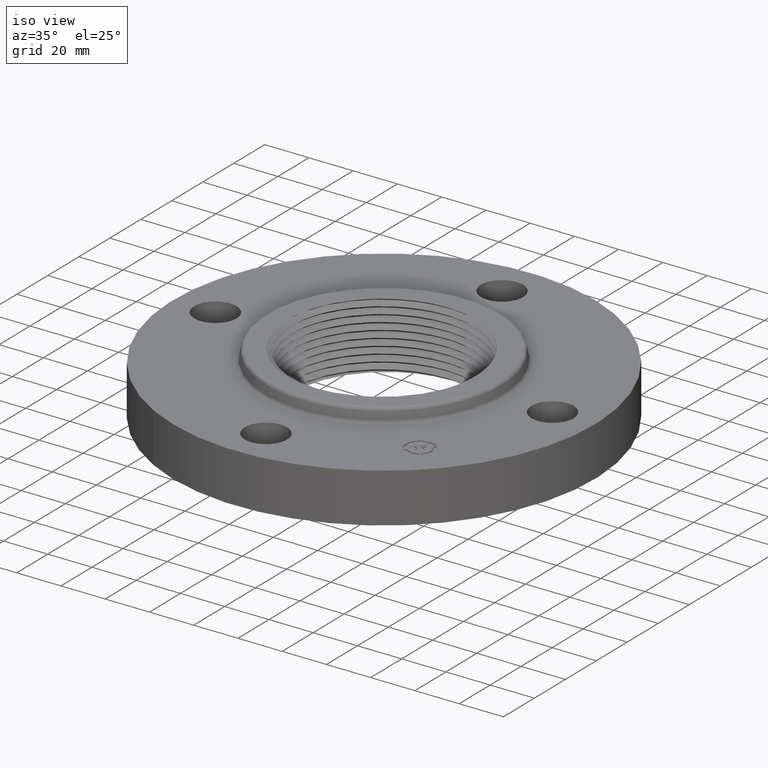
[diagram: clean part render]
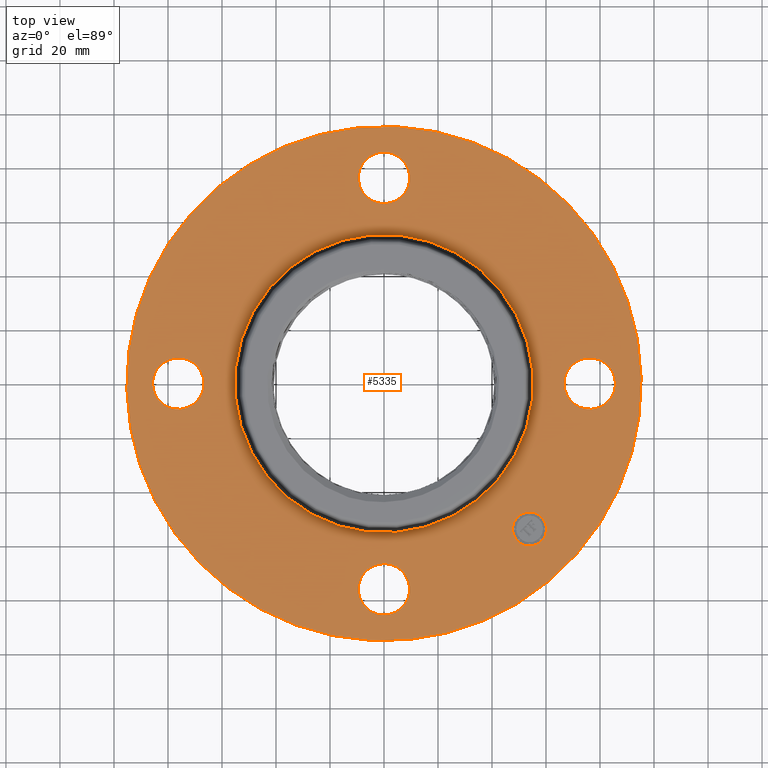
[diagram: tour spotlight — one face highlighted and labeled with its STEP entity id]
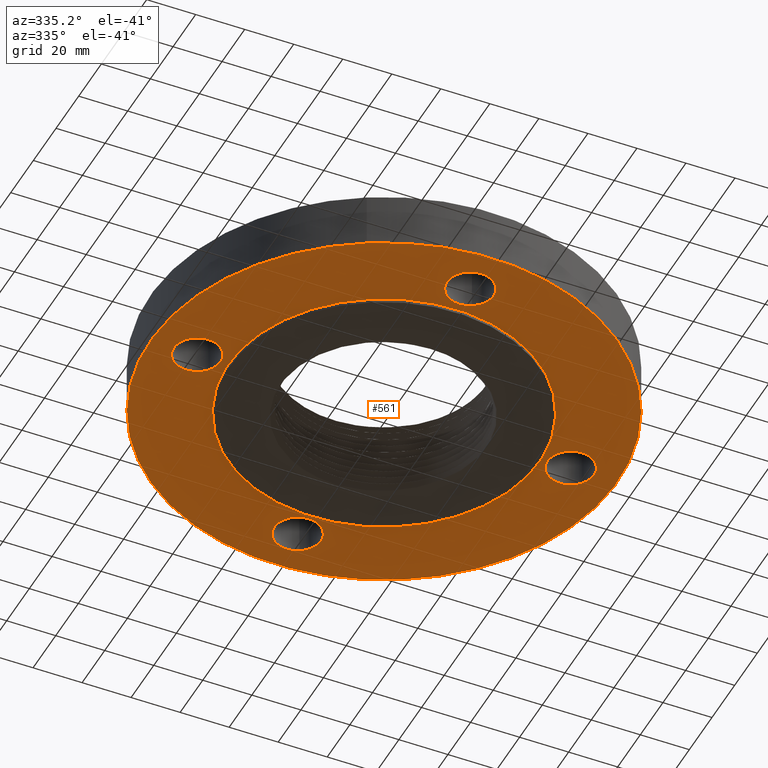
[diagram: tour spotlight — one face highlighted and labeled with its STEP entity id]
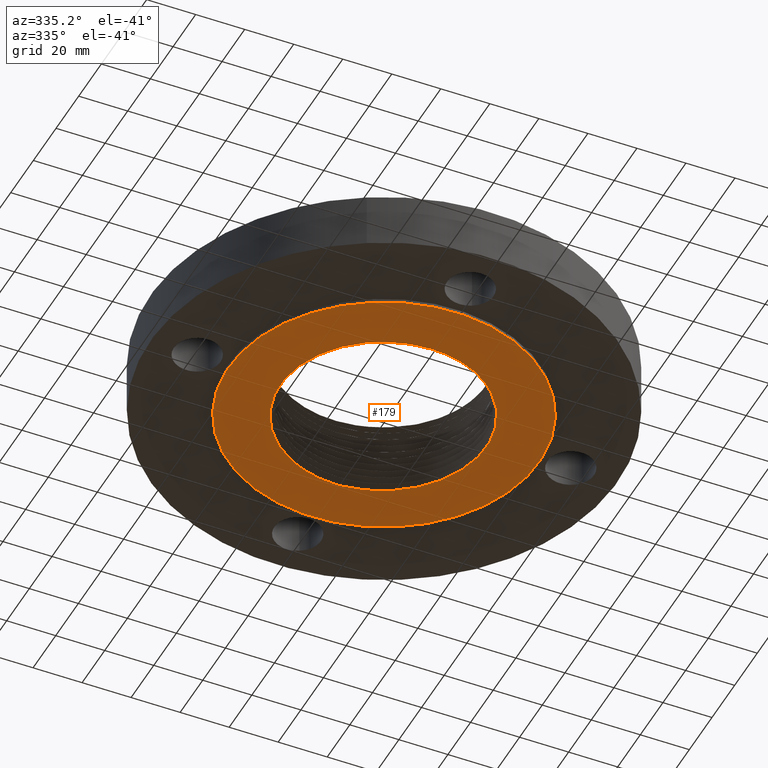
[diagram: tour spotlight — one face highlighted and labeled with its STEP entity id]
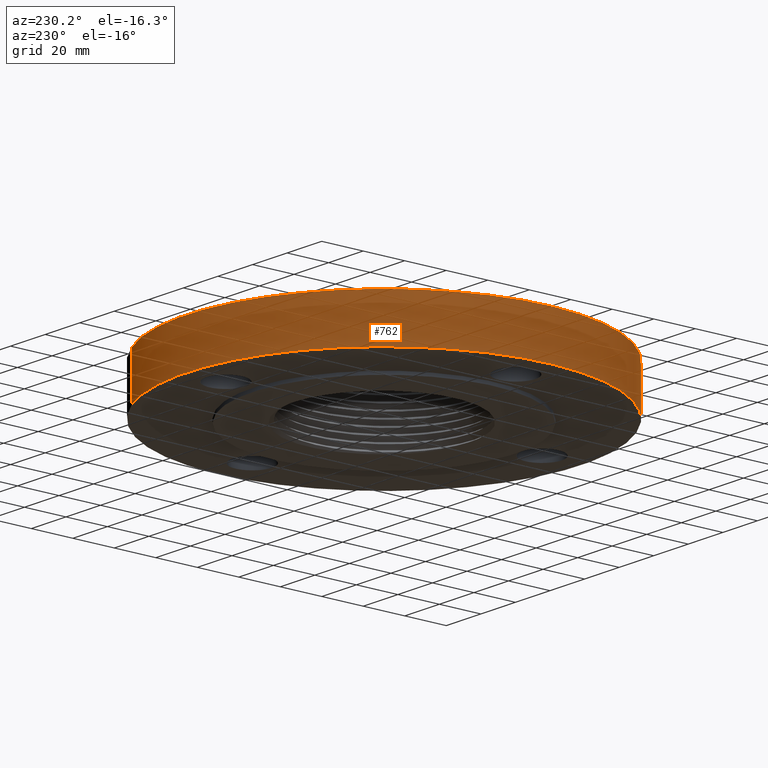
[diagram: tour spotlight — one face highlighted and labeled with its STEP entity id]
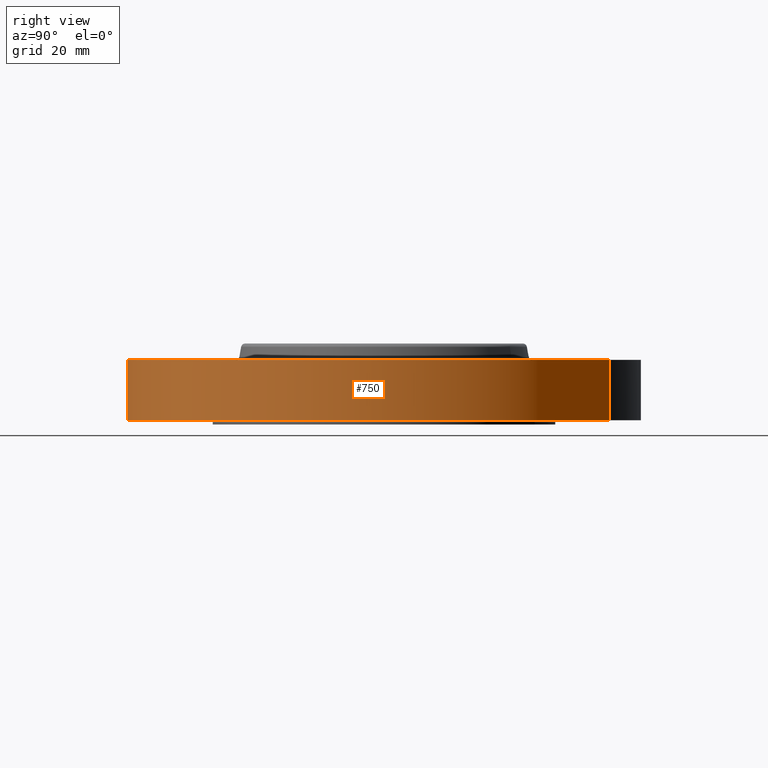
[diagram: tour spotlight — one face highlighted and labeled with its STEP entity id]
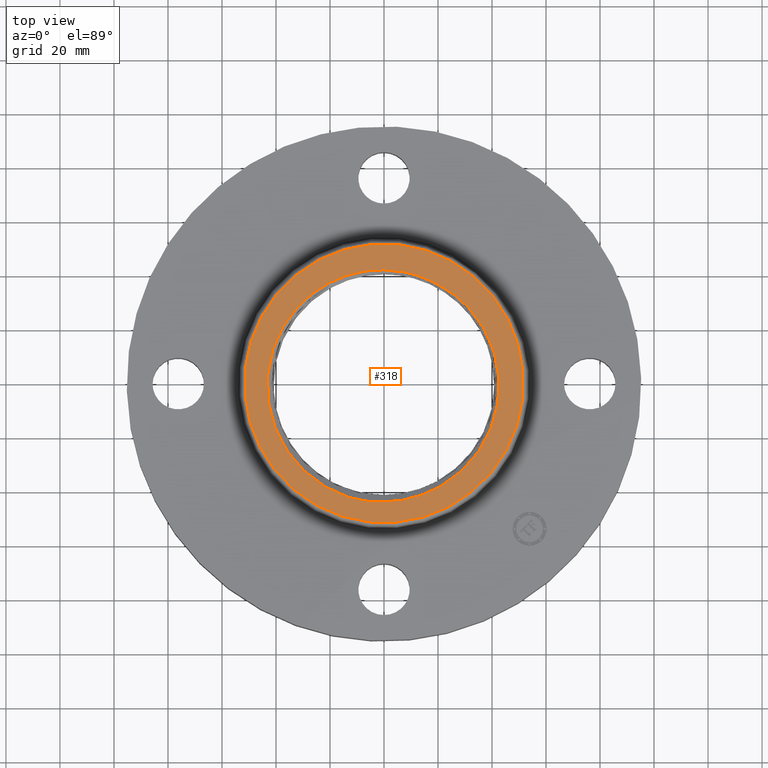
[diagram: tour spotlight — one face highlighted and labeled with its STEP entity id]
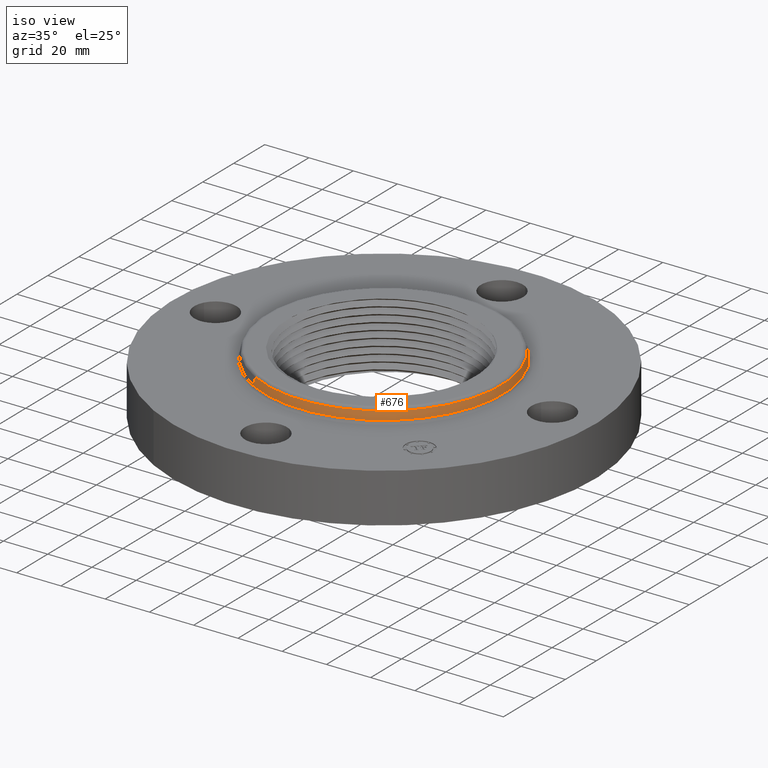
[diagram: tour spotlight — one face highlighted and labeled with its STEP entity id]
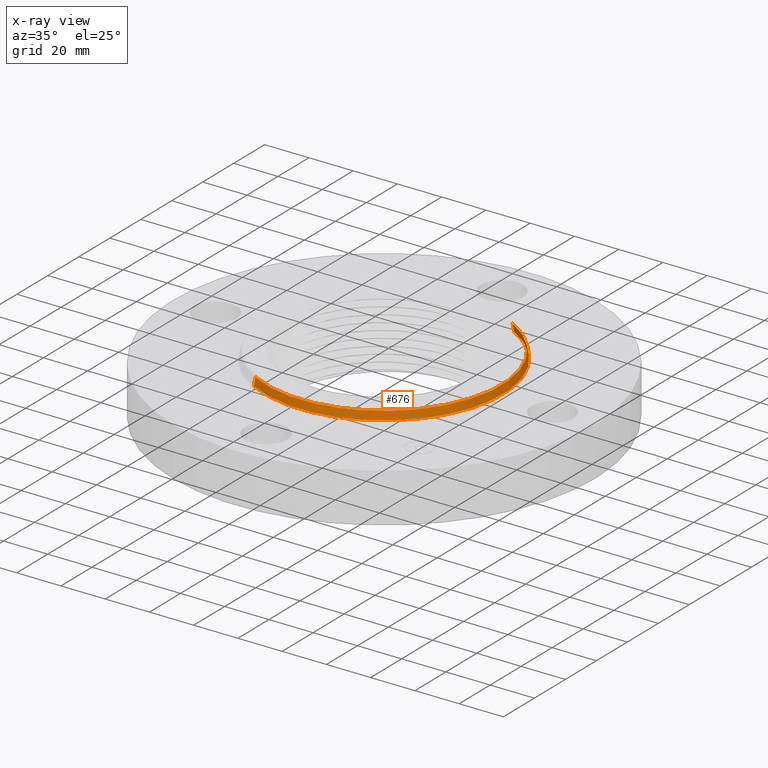
[diagram: x-ray of the same camera — body ghosted, this tour face saturated]
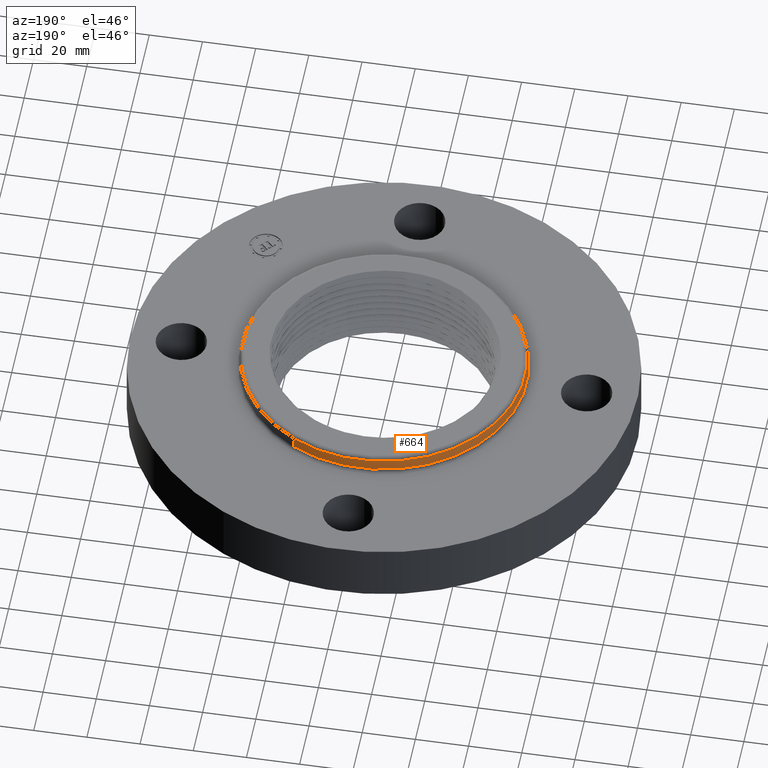
[diagram: tour spotlight — one face highlighted and labeled with its STEP entity id]
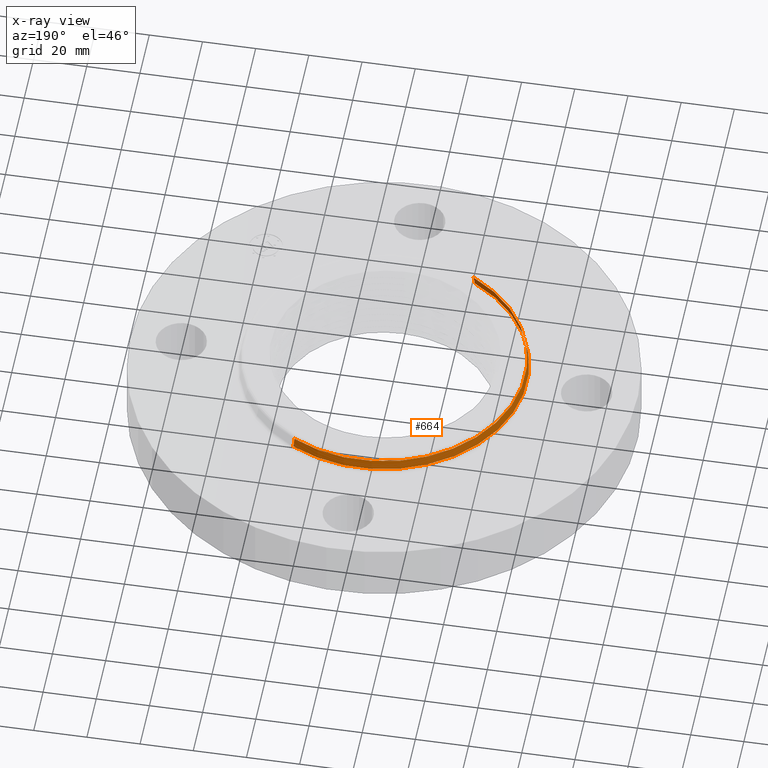
[diagram: x-ray of the same camera — body ghosted, this tour face saturated]
A machine part: a face-by-face anatomy tour. The part has 509 B-rep faces; the first image is the clean iso view, then the 8 largest visible faces are spotlighted one at a time (largest first), each with its STEP entity span.

Face 1 — top view, entity #5335. In plain terms, the highlighted planar face has unit normal (0, 0, -1).
Definition (entity closure, byte-faithful):
#349=AXIS2_PLACEMENT_3D('Circle Axis2P3D',#347,#348,$) ;
#366=AXIS2_PLACEMENT_3D('Circle Axis2P3D',#364,#365,$) ;
#406=AXIS2_PLACEMENT_3D('Circle Axis2P3D',#404,#405,$) ;
#423=AXIS2_PLACEMENT_3D('Circle Axis2P3D',#421,#422,$) ;
#463=AXIS2_PLACEMENT_3D('Circle Axis2P3D',#461,#462,$) ;
#480=AXIS2_PLACEMENT_3D('Circle Axis2P3D',#478,#479,$) ;
#684=AXIS2_PLACEMENT_3D('Circle Axis2P3D',#682,#683,$) ;
#710=AXIS2_PLACEMENT_3D('Circle Axis2P3D',#708,#709,$) ;
#734=AXIS2_PLACEMENT_3D('Circle Axis2P3D',#732,#733,$) ;
#753=AXIS2_PLACEMENT_3D('Circle Axis2P3D',#751,#752,$) ;
#784=AXIS2_PLACEMENT_3D('Circle Axis2P3D',#782,#783,$) ;
#796=AXIS2_PLACEMENT_3D('Circle Axis2P3D',#794,#795,$) ;
#5291=AXIS2_PLACEMENT_3D('Plane Axis2P3D',#5288,#5289,#5290) ;
#5319=AXIS2_PLACEMENT_3D('Circle Axis2P3D',#5317,#5318,$) ;
#5328=AXIS2_PLACEMENT_3D('Circle Axis2P3D',#5326,#5327,$) ;
#330=CARTESIAN_POINT('Vertex',(-0.179784576977,-3.32909346072,0.880000000004)) ;
#344=CARTESIAN_POINT('Vertex',(0.179784576977,-2.6709065393,0.880000000004)) ;
#347=CARTESIAN_POINT('Axis2P3D Location',(-3.7578544923E-016,-3.00000000001,0.880000000004)) ;
#364=CARTESIAN_POINT('Axis2P3D Location',(-3.7578544923E-016,-3.00000000001,0.880000000004)) ;
#387=CARTESIAN_POINT('Vertex',(-3.32909346072,0.179784576977,0.880000000004)) ;
#401=CARTESIAN_POINT('Vertex',(-2.6709065393,-0.179784576977,0.880000000004)) ;
#404=CARTESIAN_POINT('Axis2P3D Location',(-3.00000000001,-3.67394039746E-016,0.880000000004)) ;
#421=CARTESIAN_POINT('Axis2P3D Location',(-3.00000000001,-3.67394039746E-016,0.880000000004)) ;
#444=CARTESIAN_POINT('Vertex',(0.179784576977,3.32909346072,0.880000000004)) ;
#458=CARTESIAN_POINT('Vertex',(-0.179784576977,2.6709065393,0.880000000004)) ;
#461=CARTESIAN_POINT('Axis2P3D Location',(-5.51091059619E-016,3.00000000001,0.880000000004)) ;
#478=CARTESIAN_POINT('Axis2P3D Location',(-5.51091059619E-016,3.00000000001,0.880000000004)) ;
#682=CARTESIAN_POINT('Axis2P3D Location',(0.,0.,0.880000000004)) ;
#686=CARTESIAN_POINT('Vertex',(-1.0429164171,-1.90904569627,0.880000000004)) ;
#688=CARTESIAN_POINT('Vertex',(1.0429164171,1.90904569627,0.880000000004)) ;
#708=CARTESIAN_POINT('Axis2P3D Location',(0.,0.,0.880000000004)) ;
#729=CARTESIAN_POINT('Vertex',(1.79784576977,3.2909346071,0.880000000004)) ;
#732=CARTESIAN_POINT('Axis2P3D Location',(0.,0.,0.880000000004)) ;
#736=CARTESIAN_POINT('Vertex',(-1.79784576977,-3.2909346071,0.880000000004)) ;
#751=CARTESIAN_POINT('Axis2P3D Location',(0.,0.,0.880000000004)) ;
#772=CARTESIAN_POINT('Vertex',(3.32909346072,-0.179784576977,0.880000000004)) ;
#779=CARTESIAN_POINT('Vertex',(2.6709065393,0.179784576977,0.880000000004)) ;
#782=CARTESIAN_POINT('Axis2P3D Location',(3.00000000001,0.,0.880000000004)) ;
#794=CARTESIAN_POINT('Axis2P3D Location',(3.00000000001,0.,0.880000000004)) ;
#5288=CARTESIAN_POINT('Axis2P3D Location',(0.,3.75000000001,0.880000000004)) ;
#5317=CARTESIAN_POINT('Axis2P3D Location',(2.12132034357,-2.12132034357,0.880000000004)) ;
#5321=CARTESIAN_POINT('Vertex',(2.29632927191,-1.94631141522,0.880000000004)) ;
#5323=CARTESIAN_POINT('Vertex',(1.94631141522,-2.29632927191,0.880000000004)) ;
#5326=CARTESIAN_POINT('Axis2P3D Location',(2.12132034357,-2.12132034357,0.880000000004)) ;
#348=DIRECTION('Axis2P3D Direction',(0.,-0.,-0.0393700787402)) ;
#365=DIRECTION('Axis2P3D Direction',(0.,-0.,-0.0393700787402)) ;
#405=DIRECTION('Axis2P3D Direction',(-0.,0.,-0.0393700787402)) ;
#422=DIRECTION('Axis2P3D Direction',(-0.,0.,-0.0393700787402)) ;
#462=DIRECTION('Axis2P3D Direction',(0.,0.,-0.0393700787402)) ;
#479=DIRECTION('Axis2P3D Direction',(0.,0.,-0.0393700787402)) ;
#683=DIRECTION('Axis2P3D Direction',(0.,0.,-0.0393700787402)) ;
#709=DIRECTION('Axis2P3D Direction',(0.,0.,-0.0393700787402)) ;
#733=DIRECTION('Axis2P3D Direction',(0.,0.,-0.0393700787402)) ;
#752=DIRECTION('Axis2P3D Direction',(0.,0.,-0.0393700787402)) ;
#783=DIRECTION('Axis2P3D Direction',(0.,-0.,-0.0393700787402)) ;
#795=DIRECTION('Axis2P3D Direction',(0.,-0.,-0.0393700787402)) ;
#5289=DIRECTION('Axis2P3D Direction',(0.,0.,-0.0393700787402)) ;
#5290=DIRECTION('Axis2P3D XDirection',(0.0393700787402,0.,0.)) ;
#5318=DIRECTION('Axis2P3D Direction',(0.,0.,-0.0393700787402)) ;
#5327=DIRECTION('Axis2P3D Direction',(0.,0.,-0.0393700787402)) ;
#5294=ORIENTED_EDGE('',*,*,#738,.F.) ;
#5295=ORIENTED_EDGE('',*,*,#755,.F.) ;
#5298=ORIENTED_EDGE('',*,*,#798,.T.) ;
#5299=ORIENTED_EDGE('',*,*,#786,.T.) ;
#5302=ORIENTED_EDGE('',*,*,#690,.T.) ;
#5303=ORIENTED_EDGE('',*,*,#712,.T.) ;
#5306=ORIENTED_EDGE('',*,*,#351,.T.) ;
#5307=ORIENTED_EDGE('',*,*,#368,.T.) ;
#5310=ORIENTED_EDGE('',*,*,#408,.T.) ;
#5311=ORIENTED_EDGE('',*,*,#425,.T.) ;
#5314=ORIENTED_EDGE('',*,*,#465,.T.) ;
#5315=ORIENTED_EDGE('',*,*,#482,.T.) ;
#5332=ORIENTED_EDGE('',*,*,#5325,.T.) ;
#5333=ORIENTED_EDGE('',*,*,#5330,.T.) ;
#5300=FACE_BOUND('',#5297,.T.) ;
#5304=FACE_BOUND('',#5301,.T.) ;
#5308=FACE_BOUND('',#5305,.T.) ;
#5312=FACE_BOUND('',#5309,.T.) ;
#5316=FACE_BOUND('',#5313,.T.) ;
#5334=FACE_BOUND('',#5331,.T.) ;
#5335=ADVANCED_FACE('PartBody',(#5296,#5300,#5304,#5308,#5312,#5316,#5334),#5292,.F.) ;
#350=CIRCLE('generated circle',#349,0.375000000002) ;
#367=CIRCLE('generated circle',#366,0.375000000002) ;
#407=CIRCLE('generated circle',#406,0.375000000001) ;
#424=CIRCLE('generated circle',#423,0.375000000001) ;
#464=CIRCLE('generated circle',#463,0.375000000002) ;
#481=CIRCLE('generated circle',#480,0.375000000002) ;
#685=CIRCLE('generated circle',#684,2.17534597788) ;
#711=CIRCLE('generated circle',#710,2.17534597788) ;
#735=CIRCLE('generated circle',#734,3.75000000002) ;
#754=CIRCLE('generated circle',#753,3.75000000002) ;
#785=CIRCLE('generated circle',#784,0.375000000002) ;
#797=CIRCLE('generated circle',#796,0.375000000002) ;
#5320=CIRCLE('generated circle',#5319,0.247500000001) ;
#5329=CIRCLE('generated circle',#5328,0.247500000001) ;
#351=EDGE_CURVE('',#331,#345,#350,.T.) ;
#368=EDGE_CURVE('',#345,#331,#367,.T.) ;
#408=EDGE_CURVE('',#388,#402,#407,.T.) ;
#425=EDGE_CURVE('',#402,#388,#424,.T.) ;
#465=EDGE_CURVE('',#445,#459,#464,.T.) ;
#482=EDGE_CURVE('',#459,#445,#481,.T.) ;
#690=EDGE_CURVE('',#687,#689,#685,.T.) ;
#712=EDGE_CURVE('',#689,#687,#711,.T.) ;
#738=EDGE_CURVE('',#730,#737,#735,.T.) ;
#755=EDGE_CURVE('',#737,#730,#754,.T.) ;
#786=EDGE_CURVE('',#773,#780,#785,.T.) ;
#798=EDGE_CURVE('',#780,#773,#797,.T.) ;
#5325=EDGE_CURVE('',#5322,#5324,#5320,.T.) ;
#5330=EDGE_CURVE('',#5324,#5322,#5329,.T.) ;
#5293=EDGE_LOOP('',(#5294,#5295)) ;
#5297=EDGE_LOOP('',(#5298,#5299)) ;
#5301=EDGE_LOOP('',(#5302,#5303)) ;
#5305=EDGE_LOOP('',(#5306,#5307)) ;
#5309=EDGE_LOOP('',(#5310,#5311)) ;
#5313=EDGE_LOOP('',(#5314,#5315)) ;
#5331=EDGE_LOOP('',(#5332,#5333)) ;
#5296=FACE_OUTER_BOUND('',#5293,.T.) ;
#5292=PLANE('',#5291) ;
#331=VERTEX_POINT('',#330) ;
#345=VERTEX_POINT('',#344) ;
#388=VERTEX_POINT('',#387) ;
#402=VERTEX_POINT('',#401) ;
#445=VERTEX_POINT('',#444) ;
#459=VERTEX_POINT('',#458) ;
#687=VERTEX_POINT('',#686) ;
#689=VERTEX_POINT('',#688) ;
#730=VERTEX_POINT('',#729) ;
#737=VERTEX_POINT('',#736) ;
#773=VERTEX_POINT('',#772) ;
#780=VERTEX_POINT('',#779) ;
#5322=VERTEX_POINT('',#5321) ;
#5324=VERTEX_POINT('',#5323) ;

Face 2 — auxiliary view, entity #561. In plain terms, the highlighted planar face has unit normal (0, 0, -1).
Definition (entity closure, byte-faithful):
#335=AXIS2_PLACEMENT_3D('Circle Axis2P3D',#333,#334,$) ;
#361=AXIS2_PLACEMENT_3D('Circle Axis2P3D',#359,#360,$) ;
#392=AXIS2_PLACEMENT_3D('Circle Axis2P3D',#390,#391,$) ;
#418=AXIS2_PLACEMENT_3D('Circle Axis2P3D',#416,#417,$) ;
#449=AXIS2_PLACEMENT_3D('Circle Axis2P3D',#447,#448,$) ;
#475=AXIS2_PLACEMENT_3D('Circle Axis2P3D',#473,#474,$) ;
#493=AXIS2_PLACEMENT_3D('Plane Axis2P3D',#490,#491,#492) ;
#497=AXIS2_PLACEMENT_3D('Circle Axis2P3D',#495,#496,$) ;
#506=AXIS2_PLACEMENT_3D('Circle Axis2P3D',#504,#505,$) ;
#515=AXIS2_PLACEMENT_3D('Circle Axis2P3D',#513,#514,$) ;
#524=AXIS2_PLACEMENT_3D('Circle Axis2P3D',#522,#523,$) ;
#533=AXIS2_PLACEMENT_3D('Circle Axis2P3D',#531,#532,$) ;
#542=AXIS2_PLACEMENT_3D('Circle Axis2P3D',#540,#541,$) ;
#328=CARTESIAN_POINT('Vertex',(-0.179784576977,-3.32909346072,0.)) ;
#333=CARTESIAN_POINT('Axis2P3D Location',(-3.7578544923E-016,-3.00000000001,0.)) ;
#337=CARTESIAN_POINT('Vertex',(0.179784576977,-2.6709065393,0.)) ;
#359=CARTESIAN_POINT('Axis2P3D Location',(-3.7578544923E-016,-3.00000000001,0.)) ;
#385=CARTESIAN_POINT('Vertex',(-3.32909346072,0.179784576977,0.)) ;
#390=CARTESIAN_POINT('Axis2P3D Location',(-3.00000000001,-3.67394039746E-016,0.)) ;
#394=CARTESIAN_POINT('Vertex',(-2.6709065393,-0.179784576977,0.)) ;
#416=CARTESIAN_POINT('Axis2P3D Location',(-3.00000000001,-3.67394039746E-016,0.)) ;
#442=CARTESIAN_POINT('Vertex',(0.179784576977,3.32909346072,0.)) ;
#447=CARTESIAN_POINT('Axis2P3D Location',(-5.51091059619E-016,3.00000000001,0.)) ;
#451=CARTESIAN_POINT('Vertex',(-0.179784576977,2.6709065393,0.)) ;
#473=CARTESIAN_POINT('Axis2P3D Location',(-5.51091059619E-016,3.00000000001,0.)) ;
#490=CARTESIAN_POINT('Axis2P3D Location',(0.,2.50000000001,0.)) ;
#495=CARTESIAN_POINT('Axis2P3D Location',(0.,0.,0.)) ;
#499=CARTESIAN_POINT('Vertex',(-1.79784576977,-3.2909346071,4.19611851827E-016)) ;
#501=CARTESIAN_POINT('Vertex',(1.79784576977,3.2909346071,4.19611851827E-016)) ;
#504=CARTESIAN_POINT('Axis2P3D Location',(0.,0.,0.)) ;
#513=CARTESIAN_POINT('Axis2P3D Location',(3.00000000001,0.,0.)) ;
#517=CARTESIAN_POINT('Vertex',(3.32909346072,-0.179784576977,0.)) ;
#519=CARTESIAN_POINT('Vertex',(2.6709065393,0.179784576977,0.)) ;
#522=CARTESIAN_POINT('Axis2P3D Location',(3.00000000001,0.,0.)) ;
#531=CARTESIAN_POINT('Axis2P3D Location',(0.,0.,0.)) ;
#535=CARTESIAN_POINT('Vertex',(1.19856384652,2.19395640473,4.19611851827E-016)) ;
#537=CARTESIAN_POINT('Vertex',(-1.19856384652,-2.19395640473,4.19611851827E-016)) ;
#540=CARTESIAN_POINT('Axis2P3D Location',(0.,0.,0.)) ;
#334=DIRECTION('Axis2P3D Direction',(0.,-0.,-0.0393700787402)) ;
#360=DIRECTION('Axis2P3D Direction',(0.,-0.,-0.0393700787402)) ;
#391=DIRECTION('Axis2P3D Direction',(-0.,0.,-0.0393700787402)) ;
#417=DIRECTION('Axis2P3D Direction',(-0.,0.,-0.0393700787402)) ;
#448=DIRECTION('Axis2P3D Direction',(0.,0.,-0.0393700787402)) ;
#474=DIRECTION('Axis2P3D Direction',(0.,0.,-0.0393700787402)) ;
#491=DIRECTION('Axis2P3D Direction',(0.,0.,-0.0393700787402)) ;
#492=DIRECTION('Axis2P3D XDirection',(0.0393700787402,0.,0.)) ;
#496=DIRECTION('Axis2P3D Direction',(0.,0.,-0.0393700787402)) ;
#505=DIRECTION('Axis2P3D Direction',(0.,0.,-0.0393700787402)) ;
#514=DIRECTION('Axis2P3D Direction',(0.,0.,-0.0393700787402)) ;
#523=DIRECTION('Axis2P3D Direction',(0.,0.,-0.0393700787402)) ;
#532=DIRECTION('Axis2P3D Direction',(0.,0.,-0.0393700787402)) ;
#541=DIRECTION('Axis2P3D Direction',(0.,0.,-0.0393700787402)) ;
#510=ORIENTED_EDGE('',*,*,#503,.T.) ;
#511=ORIENTED_EDGE('',*,*,#508,.T.) ;
#528=ORIENTED_EDGE('',*,*,#521,.F.) ;
#529=ORIENTED_EDGE('',*,*,#526,.F.) ;
#546=ORIENTED_EDGE('',*,*,#539,.F.) ;
#547=ORIENTED_EDGE('',*,*,#544,.F.) ;
#550=ORIENTED_EDGE('',*,*,#363,.F.) ;
#551=ORIENTED_EDGE('',*,*,#339,.F.) ;
#554=ORIENTED_EDGE('',*,*,#420,.F.) ;
#555=ORIENTED_EDGE('',*,*,#396,.F.) ;
#558=ORIENTED_EDGE('',*,*,#477,.F.) ;
#559=ORIENTED_EDGE('',*,*,#453,.F.) ;
#530=FACE_BOUND('',#527,.T.) ;
#548=FACE_BOUND('',#545,.T.) ;
#552=FACE_BOUND('',#549,.T.) ;
#556=FACE_BOUND('',#553,.T.) ;
#560=FACE_BOUND('',#557,.T.) ;
#561=ADVANCED_FACE('PartBody',(#512,#530,#548,#552,#556,#560),#494,.T.) ;
#336=CIRCLE('generated circle',#335,0.375000000002) ;
#362=CIRCLE('generated circle',#361,0.375000000002) ;
#393=CIRCLE('generated circle',#392,0.375000000001) ;
#419=CIRCLE('generated circle',#418,0.375000000001) ;
#450=CIRCLE('generated circle',#449,0.375000000002) ;
#476=CIRCLE('generated circle',#475,0.375000000002) ;
#498=CIRCLE('generated circle',#497,3.75000000002) ;
#507=CIRCLE('generated circle',#506,3.75000000002) ;
#516=CIRCLE('generated circle',#515,0.375000000002) ;
#525=CIRCLE('generated circle',#524,0.375000000002) ;
#534=CIRCLE('generated circle',#533,2.50000000001) ;
#543=CIRCLE('generated circle',#542,2.50000000001) ;
#339=EDGE_CURVE('',#329,#338,#336,.T.) ;
#363=EDGE_CURVE('',#338,#329,#362,.T.) ;
#396=EDGE_CURVE('',#386,#395,#393,.T.) ;
#420=EDGE_CURVE('',#395,#386,#419,.T.) ;
#453=EDGE_CURVE('',#443,#452,#450,.T.) ;
#477=EDGE_CURVE('',#452,#443,#476,.T.) ;
#503=EDGE_CURVE('',#500,#502,#498,.T.) ;
#508=EDGE_CURVE('',#502,#500,#507,.T.) ;
#521=EDGE_CURVE('',#518,#520,#516,.T.) ;
#526=EDGE_CURVE('',#520,#518,#525,.T.) ;
#539=EDGE_CURVE('',#536,#538,#534,.T.) ;
#544=EDGE_CURVE('',#538,#536,#543,.T.) ;
#509=EDGE_LOOP('',(#510,#511)) ;
#527=EDGE_LOOP('',(#528,#529)) ;
#545=EDGE_LOOP('',(#546,#547)) ;
#549=EDGE_LOOP('',(#550,#551)) ;
#553=EDGE_LOOP('',(#554,#555)) ;
#557=EDGE_LOOP('',(#558,#559)) ;
#512=FACE_OUTER_BOUND('',#509,.T.) ;
#494=PLANE('',#493) ;
#329=VERTEX_POINT('',#328) ;
#338=VERTEX_POINT('',#337) ;
#386=VERTEX_POINT('',#385) ;
#395=VERTEX_POINT('',#394) ;
#443=VERTEX_POINT('',#442) ;
#452=VERTEX_POINT('',#451) ;
#500=VERTEX_POINT('',#499) ;
#502=VERTEX_POINT('',#501) ;
#518=VERTEX_POINT('',#517) ;
#520=VERTEX_POINT('',#519) ;
#536=VERTEX_POINT('',#535) ;
#538=VERTEX_POINT('',#537) ;

Face 3 — auxiliary view, entity #179. In plain terms, the highlighted planar face has unit normal (0, 0, -1).
Definition (entity closure, byte-faithful):
#38=AXIS2_PLACEMENT_3D('Plane Axis2P3D',#35,#36,#37) ;
#42=AXIS2_PLACEMENT_3D('Circle Axis2P3D',#40,#41,$) ;
#51=AXIS2_PLACEMENT_3D('Circle Axis2P3D',#49,#50,$) ;
#167=AXIS2_PLACEMENT_3D('Circle Axis2P3D',#165,#166,$) ;
#35=CARTESIAN_POINT('Axis2P3D Location',(0.,0.,-0.0625000000003)) ;
#40=CARTESIAN_POINT('Axis2P3D Location',(0.,0.,-0.0625000000003)) ;
#44=CARTESIAN_POINT('Vertex',(1.19856384652,2.19395640473,-0.0625000000002)) ;
#46=CARTESIAN_POINT('Vertex',(-1.19856384652,-2.19395640473,-0.0625000000002)) ;
#49=CARTESIAN_POINT('Axis2P3D Location',(0.,0.,-0.0625000000003)) ;
#59=CARTESIAN_POINT('Control Point',(-1.78110227888E-005,-1.61123401487,-0.0625000000003)) ;
#60=CARTESIAN_POINT('Control Point',(-0.0514740895987,-1.61026435839,-0.0625000000003)) ;
#61=CARTESIAN_POINT('Control Point',(-0.102872207559,-1.60724020761,-0.0625000000003)) ;
#62=CARTESIAN_POINT('Control Point',(-0.154101237261,-1.60216486216,-0.0625000000003)) ;
#63=CARTESIAN_POINT('Control Point',(-0.205051114167,-1.59505059164,-0.0625000000003)) ;
#64=CARTESIAN_POINT('Control Point',(-0.255613875317,-1.58591835635,-0.0625000000003)) ;
#65=CARTESIAN_POINT('Vertex',(-1.78110227857E-005,-1.61123401487,-0.0625000000003)) ;
#67=CARTESIAN_POINT('Vertex',(-0.255613881183,-1.58591834316,-0.0625000000003)) ;
#71=CARTESIAN_POINT('Control Point',(0.779727666988,-1.42731309088,-0.0625000000003)) ;
#72=CARTESIAN_POINT('Control Point',(0.664514979941,-1.48748976307,-0.0625000000003)) ;
#73=CARTESIAN_POINT('Control Point',(0.543396569985,-1.53609896629,-0.0625000000003)) ;
#74=CARTESIAN_POINT('Control Point',(0.417911460152,-1.57235286422,-0.0625000000003)) ;
#75=CARTESIAN_POINT('Control Point',(0.257918325908,-1.60159619245,-0.0625000000003)) ;
#76=CARTESIAN_POINT('Control Point',(0.0964774536794,-1.61064460401,-0.0625000000003)) ;
#77=CARTESIAN_POINT('Control Point',(0.0643074831708,-1.61164366805,-0.0625000000003)) ;
#78=CARTESIAN_POINT('Control Point',(0.0321334834418,-1.61183988283,-0.0625000000003)) ;
#79=CARTESIAN_POINT('Control Point',(-1.78110227858E-005,-1.61123401487,-0.0625000000003)) ;
#80=CARTESIAN_POINT('Vertex',(0.779727666988,-1.42731309088,-0.0625000000002)) ;
#84=CARTESIAN_POINT('Control Point',(0.0803885957613,1.7032381567,-0.0625000000003)) ;
#85=CARTESIAN_POINT('Control Point',(0.215600374124,1.69444358698,-0.0625000000003)) ;
#86=CARTESIAN_POINT('Control Point',(0.349811161119,1.67222714882,-0.0625000000003)) ;
#87=CARTESIAN_POINT('Control Point',(0.481211444396,1.63672790833,-0.0625000000003)) ;
#88=CARTESIAN_POINT('Control Point',(0.734996232187,1.54013031238,-0.0625000000003)) ;
#89=CARTESIAN_POINT('Control Point',(0.964201885189,1.39566433581,-0.0625000000003)) ;
#90=CARTESIAN_POINT('Control Point',(1.07112721349,1.3122409177,-0.0625000000003)) ;
#91=CARTESIAN_POINT('Control Point',(1.26671008398,1.12534408297,-0.0625000000003)) ;
#92=CARTESIAN_POINT('Control Point',(1.42114078721,0.903817690927,-0.0625000000003)) ;
#93=CARTESIAN_POINT('Control Point',(1.48693136268,0.785739012077,-0.0625000000003)) ;
#94=CARTESIAN_POINT('Control Point',(1.59380976479,0.538303399711,-0.0625000000003)) ;
#95=CARTESIAN_POINT('Control Point',(1.64928604649,0.274889194643,-0.0625000000003)) ;
#96=CARTESIAN_POINT('Control Point',(1.6636292106,0.140962999995,-0.0625000000003)) ;
#97=CARTESIAN_POINT('Control Point',(1.664676043,-0.0437822095799,-0.0625000000003)) ;
#98=CARTESIAN_POINT('Control Point',(1.64039500876,-0.22594661514,-0.0625000000003)) ;
#99=CARTESIAN_POINT('Control Point',(1.63190317246,-0.275317873615,-0.0625000000003)) ;
#100=CARTESIAN_POINT('Control Point',(1.59396788989,-0.454899241443,-0.0625000000003)) ;
#101=CARTESIAN_POINT('Control Point',(1.53141465201,-0.628058230536,-0.0625000000003)) ;
#102=CARTESIAN_POINT('Control Point',(1.4733608497,-0.748832554565,-0.0625000000003)) ;
#103=CARTESIAN_POINT('Control Point',(1.33377205932,-0.976748636683,-0.0625000000003)) ;
#104=CARTESIAN_POINT('Control Point',(1.15165507629,-1.17169169569,-0.0625000000003)) ;
#105=CARTESIAN_POINT('Control Point',(1.05107147082,-1.25948933282,-0.0625000000003)) ;
#106=CARTESIAN_POINT('Control Point',(0.933503050378,-1.34267183924,-0.0625000000003)) ;
#107=CARTESIAN_POINT('Control Point',(0.80831242576,-1.41207975131,-0.0625000000003)) ;
#108=CARTESIAN_POINT('Control Point',(0.798824790172,-1.41723741235,-0.0625000000003)) ;
#109=CARTESIAN_POINT('Control Point',(0.789296597434,-1.42231514833,-0.0625000000003)) ;
#110=CARTESIAN_POINT('Control Point',(0.779727666988,-1.42731309088,-0.0625000000003)) ;
#111=CARTESIAN_POINT('Vertex',(0.0803885957613,1.7032381567,-0.0625000000002)) ;
#115=CARTESIAN_POINT('Control Point',(0.0803885957613,1.7032381567,-0.0625000000003)) ;
#116=CARTESIAN_POINT('Control Point',(0.0643127808256,1.70368019184,-0.0625000000003)) ;
#117=CARTESIAN_POINT('Control Point',(0.0482334024243,1.70393266217,-0.0625000000003)) ;
#118=CARTESIAN_POINT('Control Point',(0.032149662913,1.70399549236,-0.0625000000003)) ;
#119=CARTESIAN_POINT('Control Point',(0.0160722817017,1.70386865086,-0.0625000000003)) ;
#120=CARTESIAN_POINT('Control Point',(4.80212238023E-007,1.70355223976,-0.0625000000003)) ;
#121=CARTESIAN_POINT('Vertex',(4.80212240156E-007,1.70355223976,-0.0625000000003)) ;
#125=CARTESIAN_POINT('Control Point',(4.80212240016E-007,1.70355223976,-0.0625000000003)) ;
#126=CARTESIAN_POINT('Control Point',(-0.136119436784,1.70087239975,-0.0625000000003)) ;
#127=CARTESIAN_POINT('Control Point',(-0.27183961586,1.68459426817,-0.0625000000003)) ;
#128=CARTESIAN_POINT('Control Point',(-0.4053493026,1.65476905766,-0.0625000000003)) ;
#129=CARTESIAN_POINT('Control Point',(-0.567002894362,1.60115020283,-0.0625000000003)) ;
#130=CARTESIAN_POINT('Control Point',(-0.719817826846,1.52825810399,-0.0625000000003)) ;
#131=CARTESIAN_POINT('Control Point',(-0.749849665231,1.51300255711,-0.0625000000003)) ;
#132=CARTESIAN_POINT('Control Point',(-0.779481377952,1.49700846105,-0.0625000000003)) ;
#133=CARTESIAN_POINT('Control Point',(-0.80868883071,1.48028995823,-0.0625000000003)) ;
#134=CARTESIAN_POINT('Vertex',(-0.80868883071,1.48028995823,-0.0625000000003)) ;
#138=CARTESIAN_POINT('Control Point',(-0.80868883071,1.48028995823,-0.0625000000003)) ;
#139=CARTESIAN_POINT('Control Point',(-0.925616596222,1.41335987712,-0.0625000000003)) ;
#140=CARTESIAN_POINT('Control Point',(-1.03574460279,1.33481970471,-0.0625000000003)) ;
#141=CARTESIAN_POINT('Control Point',(-1.13752106513,1.24557672051,-0.0625000000003)) ;
#142=CARTESIAN_POINT('Control Point',(-1.32164903309,1.04813043837,-0.0625000000003)) ;
#143=CARTESIAN_POINT('Control Point',(-1.4626319971,0.818527546855,-0.0625000000003)) ;
#144=CARTESIAN_POINT('Control Point',(-1.52126959556,0.697114123213,-0.0625000000003)) ;
#145=CARTESIAN_POINT('Control Point',(-1.58450605571,0.523379601755,-0.0625000000003)) ;
#146=CARTESIAN_POINT('Control Point',(-1.62302594419,0.343625152827,-0.0625000000003)) ;
#147=CARTESIAN_POINT('Control Point',(-1.63166969737,0.294249356774,-0.0625000000003)) ;
#148=CARTESIAN_POINT('Control Point',(-1.65649276029,0.112182108757,-0.0625000000003)) ;
#149=CARTESIAN_POINT('Control Point',(-1.65596326255,-0.0720677531709,-0.0625000000003)) ;
#150=CARTESIAN_POINT('Control Point',(-1.64201302533,-0.205406026359,-0.0625000000003)) ;
#151=CARTESIAN_POINT('Control Point',(-1.58741123476,-0.467206479079,-0.0625000000003)) ;
#152=CARTESIAN_POINT('Control Point',(-1.48173123157,-0.712099379943,-0.0625000000003)) ;
#153=CARTESIAN_POINT('Control Point',(-1.41665299547,-0.828676392053,-0.0625000000003)) ;
#154=CARTESIAN_POINT('Control Point',(-1.26391911169,-1.04679231741,-0.0625000000003)) ;
#155=CARTESIAN_POINT('Control Point',(-1.07085021271,-1.22933732554,-0.0625000000003)) ;
#156=CARTESIAN_POINT('Control Point',(-0.965402222808,-1.310378351,-0.0625000000003)) ;
#157=CARTESIAN_POINT('Control Point',(-0.789655949762,-1.41885112521,-0.0625000000003)) ;
#158=CARTESIAN_POINT('Control Point',(-0.599902949186,-1.49782384802,-0.0625000000003)) ;
#159=CARTESIAN_POINT('Control Point',(-0.530502381916,-1.52216617,-0.0625000000003)) ;
#160=CARTESIAN_POINT('Control Point',(-0.459894649246,-1.54249005354,-0.0625000000003)) ;
#161=CARTESIAN_POINT('Control Point',(-0.388391741394,-1.5587261773,-0.0625000000003)) ;
#162=CARTESIAN_POINT('Vertex',(-0.388391741732,-1.55872617941,-0.0625000000003)) ;
#165=CARTESIAN_POINT('Axis2P3D Location',(-2.79741234551E-016,3.49676543189E-016,-0.0625000000003)) ;
#36=DIRECTION('Axis2P3D Direction',(0.,0.,-0.0393700787402)) ;
#37=DIRECTION('Axis2P3D XDirection',(0.0393700787402,0.,0.)) ;
#41=DIRECTION('Axis2P3D Direction',(0.,0.,-0.0393700787402)) ;
#50=DIRECTION('Axis2P3D Direction',(0.,0.,-0.0393700787402)) ;
#166=DIRECTION('Axis2P3D Direction',(0.,0.,-0.0393700787402)) ;
#55=ORIENTED_EDGE('',*,*,#48,.T.) ;
#56=ORIENTED_EDGE('',*,*,#53,.T.) ;
#171=ORIENTED_EDGE('',*,*,#69,.F.) ;
#172=ORIENTED_EDGE('',*,*,#82,.F.) ;
#173=ORIENTED_EDGE('',*,*,#113,.F.) ;
#174=ORIENTED_EDGE('',*,*,#123,.T.) ;
#175=ORIENTED_EDGE('',*,*,#136,.T.) ;
#176=ORIENTED_EDGE('',*,*,#164,.T.) ;
#177=ORIENTED_EDGE('',*,*,#169,.F.) ;
#178=FACE_BOUND('',#170,.T.) ;
#179=ADVANCED_FACE('PartBody',(#57,#178),#39,.T.) ;
#58=B_SPLINE_CURVE_WITH_KNOTS('',5,(#59,#60,#61,#62,#63,#64),.UNSPECIFIED.,.F.,.U.,(6,6),(0.,9.36749982321),.UNSPECIFIED.) ;
#70=B_SPLINE_CURVE_WITH_KNOTS('',5,(#71,#72,#73,#74,#75,#76,#77,#78,#79),.UNSPECIFIED.,.F.,.U.,(6,3,6),(0.,23.5479332495,29.4010041195),.UNSPECIFIED.) ;
#83=B_SPLINE_CURVE_WITH_KNOTS('',5,(#84,#85,#86,#87,#88,#89,#90,#91,#92,#93,#94,#95,#96,#97,#98,#99,#100,#101,#102,#103,#104,#105,#106,#107,#108,#109,#110),.UNSPECIFIED.,.F.,.U.,(6,3,3,3,3,3,3,3,6),(0.,23.9896573285,48.0005208965,72.0170420709,96.0083070564,104.999148748,128.969369577,152.939223334,154.894984815),.UNSPECIFIED.) ;
#114=B_SPLINE_CURVE_WITH_KNOTS('',5,(#115,#116,#117,#118,#119,#120),.UNSPECIFIED.,.F.,.U.,(6,6),(0.,2.84730045492),.UNSPECIFIED.) ;
#124=B_SPLINE_CURVE_WITH_KNOTS('',5,(#125,#126,#127,#128,#129,#130,#131,#132,#133),.UNSPECIFIED.,.F.,.U.,(6,3,6),(0.,24.1151747581,30.1055925896),.UNSPECIFIED.) ;
#137=B_SPLINE_CURVE_WITH_KNOTS('',5,(#138,#139,#140,#141,#142,#143,#144,#145,#146,#147,#148,#149,#150,#151,#152,#153,#154,#155,#156,#157,#158,#159,#160,#161),.UNSPECIFIED.,.F.,.U.,(6,3,3,3,3,3,3,6),(0.,23.9817617001,47.9661837297,56.9601154641,80.9551027507,104.978513089,129.01122571,142.40041647),.UNSPECIFIED.) ;
#43=CIRCLE('generated circle',#42,2.50000000001) ;
#52=CIRCLE('generated circle',#51,2.50000000001) ;
#168=CIRCLE('generated circle',#167,1.60638583392) ;
#48=EDGE_CURVE('',#45,#47,#43,.T.) ;
#53=EDGE_CURVE('',#47,#45,#52,.T.) ;
#69=EDGE_CURVE('',#66,#68,#58,.T.) ;
#82=EDGE_CURVE('',#81,#66,#70,.T.) ;
#113=EDGE_CURVE('',#112,#81,#83,.T.) ;
#123=EDGE_CURVE('',#112,#122,#114,.T.) ;
#136=EDGE_CURVE('',#122,#135,#124,.T.) ;
#164=EDGE_CURVE('',#135,#163,#137,.T.) ;
#169=EDGE_CURVE('',#68,#163,#168,.T.) ;
#54=EDGE_LOOP('',(#55,#56)) ;
#170=EDGE_LOOP('',(#171,#172,#173,#174,#175,#176,#177)) ;
#57=FACE_OUTER_BOUND('',#54,.T.) ;
#39=PLANE('',#38) ;
#45=VERTEX_POINT('',#44) ;
#47=VERTEX_POINT('',#46) ;
#66=VERTEX_POINT('',#65) ;
#68=VERTEX_POINT('',#67) ;
#81=VERTEX_POINT('',#80) ;
#112=VERTEX_POINT('',#111) ;
#122=VERTEX_POINT('',#121) ;
#135=VERTEX_POINT('',#134) ;
#163=VERTEX_POINT('',#162) ;

Face 4 — auxiliary view, entity #762. In plain terms, the highlighted cylindrical surface (partial cylindrical patch) has radius 95.25 mm, axis along (0, 0, -1).
Definition (entity closure, byte-faithful):
#497=AXIS2_PLACEMENT_3D('Circle Axis2P3D',#495,#496,$) ;
#723=AXIS2_PLACEMENT_3D('Cylinder Axis2P3D',#720,#721,#722) ;
#753=AXIS2_PLACEMENT_3D('Circle Axis2P3D',#751,#752,$) ;
#495=CARTESIAN_POINT('Axis2P3D Location',(0.,0.,0.)) ;
#499=CARTESIAN_POINT('Vertex',(-1.79784576977,-3.2909346071,4.19611851827E-016)) ;
#501=CARTESIAN_POINT('Vertex',(1.79784576977,3.2909346071,4.19611851827E-016)) ;
#720=CARTESIAN_POINT('Axis2P3D Location',(0.,0.,0.528750000002)) ;
#725=CARTESIAN_POINT('Line Origine',(1.79784576977,3.2909346071,0.440000000002)) ;
#729=CARTESIAN_POINT('Vertex',(1.79784576977,3.2909346071,0.880000000004)) ;
#736=CARTESIAN_POINT('Vertex',(-1.79784576977,-3.2909346071,0.880000000004)) ;
#739=CARTESIAN_POINT('Line Origine',(-1.79784576977,-3.2909346071,0.440000000002)) ;
#751=CARTESIAN_POINT('Axis2P3D Location',(0.,0.,0.880000000004)) ;
#496=DIRECTION('Axis2P3D Direction',(0.,0.,-0.0393700787402)) ;
#721=DIRECTION('Axis2P3D Direction',(0.,0.,-0.0393700787402)) ;
#722=DIRECTION('Axis2P3D XDirection',(-0.0188750212049,-0.0345504945626,0.)) ;
#726=DIRECTION('Vector Direction',(0.,0.,-0.0393700787402)) ;
#740=DIRECTION('Vector Direction',(0.,0.,-0.0393700787402)) ;
#752=DIRECTION('Axis2P3D Direction',(0.,0.,-0.0393700787402)) ;
#727=VECTOR('Line Direction',#726,0.0393700787402) ;
#741=VECTOR('Line Direction',#740,0.0393700787402) ;
#757=ORIENTED_EDGE('',*,*,#503,.F.) ;
#758=ORIENTED_EDGE('',*,*,#743,.T.) ;
#759=ORIENTED_EDGE('',*,*,#755,.T.) ;
#760=ORIENTED_EDGE('',*,*,#731,.F.) ;
#762=ADVANCED_FACE('PartBody',(#761),#724,.T.) ;
#498=CIRCLE('generated circle',#497,3.75000000002) ;
#754=CIRCLE('generated circle',#753,3.75000000002) ;
#724=CYLINDRICAL_SURFACE('generated cylinder',#723,3.75000000002) ;
#503=EDGE_CURVE('',#500,#502,#498,.T.) ;
#731=EDGE_CURVE('',#502,#730,#728,.F.) ;
#743=EDGE_CURVE('',#500,#737,#742,.F.) ;
#755=EDGE_CURVE('',#737,#730,#754,.T.) ;
#756=EDGE_LOOP('',(#757,#758,#759,#760)) ;
#761=FACE_OUTER_BOUND('',#756,.T.) ;
#728=LINE('Line',#725,#727) ;
#742=LINE('Line',#739,#741) ;
#500=VERTEX_POINT('',#499) ;
#502=VERTEX_POINT('',#501) ;
#730=VERTEX_POINT('',#729) ;
#737=VERTEX_POINT('',#736) ;

Face 5 — right view, entity #750. In plain terms, the highlighted cylindrical surface (partial cylindrical patch) has radius 95.25 mm, axis along (0, 0, -1).
Definition (entity closure, byte-faithful):
#506=AXIS2_PLACEMENT_3D('Circle Axis2P3D',#504,#505,$) ;
#723=AXIS2_PLACEMENT_3D('Cylinder Axis2P3D',#720,#721,#722) ;
#734=AXIS2_PLACEMENT_3D('Circle Axis2P3D',#732,#733,$) ;
#499=CARTESIAN_POINT('Vertex',(-1.79784576977,-3.2909346071,4.19611851827E-016)) ;
#501=CARTESIAN_POINT('Vertex',(1.79784576977,3.2909346071,4.19611851827E-016)) ;
#504=CARTESIAN_POINT('Axis2P3D Location',(0.,0.,0.)) ;
#720=CARTESIAN_POINT('Axis2P3D Location',(0.,0.,0.528750000002)) ;
#725=CARTESIAN_POINT('Line Origine',(1.79784576977,3.2909346071,0.440000000002)) ;
#729=CARTESIAN_POINT('Vertex',(1.79784576977,3.2909346071,0.880000000004)) ;
#732=CARTESIAN_POINT('Axis2P3D Location',(0.,0.,0.880000000004)) ;
#736=CARTESIAN_POINT('Vertex',(-1.79784576977,-3.2909346071,0.880000000004)) ;
#739=CARTESIAN_POINT('Line Origine',(-1.79784576977,-3.2909346071,0.440000000002)) ;
#505=DIRECTION('Axis2P3D Direction',(0.,0.,-0.0393700787402)) ;
#721=DIRECTION('Axis2P3D Direction',(0.,0.,-0.0393700787402)) ;
#722=DIRECTION('Axis2P3D XDirection',(-0.0188750212049,-0.0345504945626,0.)) ;
#726=DIRECTION('Vector Direction',(0.,0.,-0.0393700787402)) ;
#733=DIRECTION('Axis2P3D Direction',(0.,0.,-0.0393700787402)) ;
#740=DIRECTION('Vector Direction',(0.,0.,-0.0393700787402)) ;
#727=VECTOR('Line Direction',#726,0.0393700787402) ;
#741=VECTOR('Line Direction',#740,0.0393700787402) ;
#745=ORIENTED_EDGE('',*,*,#508,.F.) ;
#746=ORIENTED_EDGE('',*,*,#731,.T.) ;
#747=ORIENTED_EDGE('',*,*,#738,.T.) ;
#748=ORIENTED_EDGE('',*,*,#743,.F.) ;
#750=ADVANCED_FACE('PartBody',(#749),#724,.T.) ;
#507=CIRCLE('generated circle',#506,3.75000000002) ;
#735=CIRCLE('generated circle',#734,3.75000000002) ;
#724=CYLINDRICAL_SURFACE('generated cylinder',#723,3.75000000002) ;
#508=EDGE_CURVE('',#502,#500,#507,.T.) ;
#731=EDGE_CURVE('',#502,#730,#728,.F.) ;
#738=EDGE_CURVE('',#730,#737,#735,.T.) ;
#743=EDGE_CURVE('',#500,#737,#742,.F.) ;
#744=EDGE_LOOP('',(#745,#746,#747,#748)) ;
#749=FACE_OUTER_BOUND('',#744,.T.) ;
#728=LINE('Line',#725,#727) ;
#742=LINE('Line',#739,#741) ;
#500=VERTEX_POINT('',#499) ;
#502=VERTEX_POINT('',#501) ;
#730=VERTEX_POINT('',#729) ;
#737=VERTEX_POINT('',#736) ;

Face 6 — top view, entity #318. In plain terms, the highlighted planar face has unit normal (0, 0, -1).
Definition (entity closure, byte-faithful):
#183=AXIS2_PLACEMENT_3D('Plane Axis2P3D',#180,#181,#182) ;
#187=AXIS2_PLACEMENT_3D('Circle Axis2P3D',#185,#186,$) ;
#196=AXIS2_PLACEMENT_3D('Circle Axis2P3D',#194,#195,$) ;
#205=AXIS2_PLACEMENT_3D('Circle Axis2P3D',#203,#204,$) ;
#180=CARTESIAN_POINT('Axis2P3D Location',(0.,2.03233554677,1.12)) ;
#185=CARTESIAN_POINT('Axis2P3D Location',(0.,0.,1.12)) ;
#189=CARTESIAN_POINT('Vertex',(0.974353564133,1.78354223575,1.12)) ;
#191=CARTESIAN_POINT('Vertex',(-0.974353564133,-1.78354223575,1.12)) ;
#194=CARTESIAN_POINT('Axis2P3D Location',(0.,0.,1.12)) ;
#203=CARTESIAN_POINT('Axis2P3D Location',(-2.79741234551E-016,2.79741234551E-016,1.12)) ;
#207=CARTESIAN_POINT('Vertex',(0.656779966031,1.50638716466,1.12)) ;
#209=CARTESIAN_POINT('Vertex',(0.781078676946,1.44584864874,1.12000000984)) ;
#213=CARTESIAN_POINT('Control Point',(0.822361207076,-1.50532321118,1.12)) ;
#214=CARTESIAN_POINT('Control Point',(0.94029585128,-1.43786878937,1.12)) ;
#215=CARTESIAN_POINT('Control Point',(1.05143596479,-1.358801341,1.12)) ;
#216=CARTESIAN_POINT('Control Point',(1.15424230446,-1.26902017905,1.12)) ;
#217=CARTESIAN_POINT('Control Point',(1.34048705906,-1.07044636398,1.12)) ;
#218=CARTESIAN_POINT('Control Point',(1.48371084804,-0.839552699083,1.12)) ;
#219=CARTESIAN_POINT('Control Point',(1.54350425636,-0.717435723797,1.12)) ;
#220=CARTESIAN_POINT('Control Point',(1.60837542071,-0.542628580709,1.12)) ;
#221=CARTESIAN_POINT('Control Point',(1.64857551058,-0.361622344423,1.12)) ;
#222=CARTESIAN_POINT('Control Point',(1.65768052532,-0.311890337381,1.12)) ;
#223=CARTESIAN_POINT('Control Point',(1.68420343212,-0.128460598179,1.12)) ;
#224=CARTESIAN_POINT('Control Point',(1.68539404987,0.0573717246222,1.12)) ;
#225=CARTESIAN_POINT('Control Point',(1.6726916117,0.191992609619,1.12)) ;
#226=CARTESIAN_POINT('Control Point',(1.62053807311,0.456652221913,1.12)) ;
#227=CARTESIAN_POINT('Control Point',(1.51710792858,0.705017472247,1.12)) ;
#228=CARTESIAN_POINT('Control Point',(1.45308025156,0.823493341958,1.12)) ;
#229=CARTESIAN_POINT('Control Point',(1.30308187839,1.04449318442,1.12)) ;
#230=CARTESIAN_POINT('Control Point',(1.11266229665,1.23094471532,1.12)) ;
#231=CARTESIAN_POINT('Control Point',(1.00909662633,1.31380766461,1.12)) ;
#232=CARTESIAN_POINT('Control Point',(0.898051147432,1.3857063078,1.12)) ;
#233=CARTESIAN_POINT('Control Point',(0.781078815311,1.44584887698,1.12)) ;
#234=CARTESIAN_POINT('Vertex',(0.822361207076,-1.50532321118,1.12)) ;
#238=CARTESIAN_POINT('Control Point',(-6.49634221343E-007,-1.73207587175,1.12)) ;
#239=CARTESIAN_POINT('Control Point',(0.138403034235,-1.72939594723,1.12)) ;
#240=CARTESIAN_POINT('Control Point',(0.276405690401,-1.71288926198,1.12)) ;
#241=CARTESIAN_POINT('Control Point',(0.412166277681,-1.68260730525,1.12)) ;
#242=CARTESIAN_POINT('Control Point',(0.576556990824,-1.62814061762,1.12)) ;
#243=CARTESIAN_POINT('Control Point',(0.731969798492,-1.55407313203,1.12)) ;
#244=CARTESIAN_POINT('Control Point',(0.762515022018,-1.5385696226,1.12)) ;
#245=CARTESIAN_POINT('Control Point',(0.792653679267,-1.52231486046,1.12)) ;
#246=CARTESIAN_POINT('Control Point',(0.822361207076,-1.50532321118,1.12)) ;
#247=CARTESIAN_POINT('Vertex',(-6.49634221482E-007,-1.73207587175,1.12)) ;
#251=CARTESIAN_POINT('Control Point',(-0.512277985376,-1.66507724208,1.12)) ;
#252=CARTESIAN_POINT('Control Point',(-0.412479024961,-1.69368666683,1.12)) ;
#253=CARTESIAN_POINT('Control Point',(-0.310595345481,-1.71484585847,1.12)) ;
#254=CARTESIAN_POINT('Control Point',(-0.207366445782,-1.72834396524,1.12)) ;
#255=CARTESIAN_POINT('Control Point',(-0.103571266369,-1.73408132,1.12)) ;
#256=CARTESIAN_POINT('Control Point',(-6.49634220853E-007,-1.73207587175,1.12)) ;
#257=CARTESIAN_POINT('Vertex',(-0.512277985376,-1.66507724208,1.12)) ;
#261=CARTESIAN_POINT('Control Point',(-0.512277985376,-1.66507724208,1.12)) ;
#262=CARTESIAN_POINT('Control Point',(-0.642455330205,-1.62253585095,1.12)) ;
#263=CARTESIAN_POINT('Control Point',(-0.768304107814,-1.56724657614,1.12)) ;
#264=CARTESIAN_POINT('Control Point',(-0.888157452209,-1.49978049157,1.12)) ;
#265=CARTESIAN_POINT('Control Point',(-1.11285880793,-1.34225874128,1.12)) ;
#266=CARTESIAN_POINT('Control Point',(-1.30212155912,-1.14427711032,1.12)) ;
#267=CARTESIAN_POINT('Control Point',(-1.38660710762,-1.03628597297,1.12)) ;
#268=CARTESIAN_POINT('Control Point',(-1.53296602277,-0.805308319084,1.12)) ;
#269=CARTESIAN_POINT('Control Point',(-1.63109327754,-0.550483110861,1.12)) ;
#270=CARTESIAN_POINT('Control Point',(-1.66730173552,-0.418727227027,1.12)) ;
#271=CARTESIAN_POINT('Control Point',(-1.70447449349,-0.200398160487,1.12)) ;
#272=CARTESIAN_POINT('Control Point',(-1.7061644976,0.0202140731388,1.12)) ;
#273=CARTESIAN_POINT('Control Point',(-1.70154082178,0.104922130884,1.12)) ;
#274=CARTESIAN_POINT('Control Point',(-1.6837745313,0.256395781447,1.12)) ;
#275=CARTESIAN_POINT('Control Point',(-1.64927016863,0.404704372054,1.12)) ;
#276=CARTESIAN_POINT('Control Point',(-1.63067368234,0.469758262424,1.12)) ;
#277=CARTESIAN_POINT('Control Point',(-1.56529183818,0.661715069997,1.12)) ;
#278=CARTESIAN_POINT('Control Point',(-1.47187896172,0.842238444462,1.12)) ;
#279=CARTESIAN_POINT('Control Point',(-1.39781870798,0.955853212153,1.12)) ;
#280=CARTESIAN_POINT('Control Point',(-1.2470698355,1.14307466899,1.12)) ;
#281=CARTESIAN_POINT('Control Point',(-1.06629921906,1.30023052949,1.12)) ;
#282=CARTESIAN_POINT('Control Point',(-0.982107854278,1.3626066581,1.12)) ;
#283=CARTESIAN_POINT('Control Point',(-0.89346014307,1.41813498552,1.12)) ;
#284=CARTESIAN_POINT('Control Point',(-0.801111687203,1.4664289023,1.12)) ;
#285=CARTESIAN_POINT('Vertex',(-0.801111687203,1.4664289023,1.12)) ;
#289=CARTESIAN_POINT('Control Point',(-0.801111687203,1.4664289023,1.12)) ;
#290=CARTESIAN_POINT('Control Point',(-0.682769225347,1.52831646678,1.12)) ;
#291=CARTESIAN_POINT('Control Point',(-0.558349670862,1.57832377807,1.12)) ;
#292=CARTESIAN_POINT('Control Point',(-0.429433279272,1.61564007595,1.12)) ;
#293=CARTESIAN_POINT('Control Point',(-0.265049158441,1.64577295737,1.12)) ;
#294=CARTESIAN_POINT('Control Point',(-0.0991605620417,1.65515651204,1.12)) ;
#295=CARTESIAN_POINT('Control Point',(-0.0661019615658,1.6562002552,1.12)) ;
#296=CARTESIAN_POINT('Control Point',(-0.0330385578414,1.6564189703,1.12)) ;
#297=CARTESIAN_POINT('Control Point',(2.16677185307E-006,1.65581341493,1.12)) ;
#298=CARTESIAN_POINT('Vertex',(2.16677185303E-006,1.65581341493,1.12)) ;
#302=CARTESIAN_POINT('Control Point',(2.16677185681E-006,1.65581341493,1.12)) ;
#303=CARTESIAN_POINT('Control Point',(0.135929950263,1.65332219248,1.12)) ;
#304=CARTESIAN_POINT('Control Point',(0.271474143915,1.63688052596,1.12)) ;
#305=CARTESIAN_POINT('Control Point',(0.404702080045,1.60654231748,1.12)) ;
#306=CARTESIAN_POINT('Control Point',(0.533710879068,1.5627717765,1.12)) ;
#307=CARTESIAN_POINT('Control Point',(0.65677995953,1.50638716934,1.12)) ;
#181=DIRECTION('Axis2P3D Direction',(0.,0.,-0.0393700787402)) ;
#182=DIRECTION('Axis2P3D XDirection',(0.0393700787402,0.,0.)) ;
#186=DIRECTION('Axis2P3D Direction',(0.,0.,-0.0393700787402)) ;
#195=DIRECTION('Axis2P3D Direction',(0.,0.,-0.0393700787402)) ;
#204=DIRECTION('Axis2P3D Direction',(0.,0.,-0.0393700787402)) ;
#200=ORIENTED_EDGE('',*,*,#193,.F.) ;
#201=ORIENTED_EDGE('',*,*,#198,.F.) ;
#310=ORIENTED_EDGE('',*,*,#211,.T.) ;
#311=ORIENTED_EDGE('',*,*,#236,.F.) ;
#312=ORIENTED_EDGE('',*,*,#249,.F.) ;
#313=ORIENTED_EDGE('',*,*,#259,.F.) ;
#314=ORIENTED_EDGE('',*,*,#287,.T.) ;
#315=ORIENTED_EDGE('',*,*,#300,.T.) ;
#316=ORIENTED_EDGE('',*,*,#308,.T.) ;
#317=FACE_BOUND('',#309,.T.) ;
#318=ADVANCED_FACE('PartBody',(#202,#317),#184,.F.) ;
#212=B_SPLINE_CURVE_WITH_KNOTS('',5,(#213,#214,#215,#216,#217,#218,#219,#220,#221,#222,#223,#224,#225,#226,#227,#228,#229,#230,#231,#232,#233),.UNSPECIFIED.,.F.,.U.,(6,3,3,3,3,3,6),(0.,24.2477395421,48.498670349,57.5926219907,81.8543807673,106.145106516,130.173618278),.UNSPECIFIED.) ;
#237=B_SPLINE_CURVE_WITH_KNOTS('',5,(#238,#239,#240,#241,#242,#243,#244,#245,#246),.UNSPECIFIED.,.F.,.U.,(6,3,6),(0.,24.5859171465,30.6938797529),.UNSPECIFIED.) ;
#250=B_SPLINE_CURVE_WITH_KNOTS('',5,(#251,#252,#253,#254,#255,#256),.UNSPECIFIED.,.F.,.U.,(6,6),(0.,18.3981996046),.UNSPECIFIED.) ;
#260=B_SPLINE_CURVE_WITH_KNOTS('',5,(#261,#262,#263,#264,#265,#266,#267,#268,#269,#270,#271,#272,#273,#274,#275,#276,#277,#278,#279,#280,#281,#282,#283,#284),.UNSPECIFIED.,.F.,.U.,(6,3,3,3,3,3,3,6),(0.,24.2697658633,48.5569730497,72.8270303265,87.9824934496,100.101278424,124.338663796,143.171876109),.UNSPECIFIED.) ;
#288=B_SPLINE_CURVE_WITH_KNOTS('',5,(#289,#290,#291,#292,#293,#294,#295,#296,#297),.UNSPECIFIED.,.F.,.U.,(6,3,6),(0.,24.1343365196,30.1335428079),.UNSPECIFIED.) ;
#301=B_SPLINE_CURVE_WITH_KNOTS('',5,(#302,#303,#304,#305,#306,#307),.UNSPECIFIED.,.F.,.U.,(6,6),(0.,24.680415548),.UNSPECIFIED.) ;
#188=CIRCLE('generated circle',#187,2.03233554677) ;
#197=CIRCLE('generated circle',#196,2.03233554677) ;
#206=CIRCLE('generated circle',#205,1.64333873977) ;
#193=EDGE_CURVE('',#190,#192,#188,.T.) ;
#198=EDGE_CURVE('',#192,#190,#197,.T.) ;
#211=EDGE_CURVE('',#208,#210,#206,.T.) ;
#236=EDGE_CURVE('',#235,#210,#212,.T.) ;
#249=EDGE_CURVE('',#248,#235,#237,.T.) ;
#259=EDGE_CURVE('',#258,#248,#250,.T.) ;
#287=EDGE_CURVE('',#258,#286,#260,.T.) ;
#300=EDGE_CURVE('',#286,#299,#288,.T.) ;
#308=EDGE_CURVE('',#299,#208,#301,.T.) ;
#199=EDGE_LOOP('',(#200,#201)) ;
#309=EDGE_LOOP('',(#310,#311,#312,#313,#314,#315,#316)) ;
#202=FACE_OUTER_BOUND('',#199,.T.) ;
#184=PLANE('',#183) ;
#190=VERTEX_POINT('',#189) ;
#192=VERTEX_POINT('',#191) ;
#208=VERTEX_POINT('',#207) ;
#210=VERTEX_POINT('',#209) ;
#235=VERTEX_POINT('',#234) ;
#248=VERTEX_POINT('',#247) ;
#258=VERTEX_POINT('',#257) ;
#286=VERTEX_POINT('',#285) ;
#299=VERTEX_POINT('',#298) ;

Face 7 — iso view, entity #676. An x-ray twin of the same camera follows (body ghosted, this face saturated) — the face is partly hidden behind the body. In plain terms, the highlighted conical surface has half-angle 10 deg.
Definition (entity closure, byte-faithful):
#624=AXIS2_PLACEMENT_3D('Circle Axis2P3D',#622,#623,$) ;
#637=AXIS2_PLACEMENT_3D('Cone Axis2P3D',#634,#635,#636) ;
#667=AXIS2_PLACEMENT_3D('Circle Axis2P3D',#665,#666,$) ;
#600=CARTESIAN_POINT('Vertex',(-1.00268208338,-1.8353972424,1.07041889066)) ;
#602=CARTESIAN_POINT('Vertex',(1.00268208338,1.8353972424,1.07041889066)) ;
#622=CARTESIAN_POINT('Axis2P3D Location',(0.,0.,1.07041889066)) ;
#634=CARTESIAN_POINT('Axis2P3D Location',(0.,0.,1.07041889066)) ;
#643=CARTESIAN_POINT('Vertex',(-1.01458789785,-1.85719068961,0.929581109344)) ;
#645=CARTESIAN_POINT('Vertex',(1.01458789785,1.85719068961,0.929581109344)) ;
#648=CARTESIAN_POINT('Line Origine',(-1.00863499061,-1.84629396601,1.)) ;
#653=CARTESIAN_POINT('Line Origine',(1.00863499061,1.84629396601,1.)) ;
#665=CARTESIAN_POINT('Axis2P3D Location',(0.,0.,0.929581109344)) ;
#623=DIRECTION('Axis2P3D Direction',(0.,0.,-0.0393700787402)) ;
#635=DIRECTION('Axis2P3D Direction',(0.,0.,-0.0393700787402)) ;
#636=DIRECTION('Axis2P3D XDirection',(0.0188750212049,0.0345504945626,0.)) ;
#649=DIRECTION('Vector Direction',(-0.00327761303565,-0.00599963041829,-0.03877195878)) ;
#654=DIRECTION('Vector Direction',(0.00327761303565,0.00599963041829,-0.03877195878)) ;
#666=DIRECTION('Axis2P3D Direction',(0.,0.,-0.0393700787402)) ;
#650=VECTOR('Line Direction',#649,0.0393700787402) ;
#655=VECTOR('Line Direction',#654,0.0393700787402) ;
#671=ORIENTED_EDGE('',*,*,#669,.F.) ;
#672=ORIENTED_EDGE('',*,*,#657,.T.) ;
#673=ORIENTED_EDGE('',*,*,#626,.T.) ;
#674=ORIENTED_EDGE('',*,*,#652,.F.) ;
#676=ADVANCED_FACE('PartBody',(#675),#638,.T.) ;
#625=CIRCLE('generated circle',#624,2.09142401195) ;
#668=CIRCLE('generated circle',#667,2.1162575127) ;
#638=CONICAL_SURFACE('Cone',#637,2.09142401195,0.174532925199) ;
#626=EDGE_CURVE('',#603,#601,#625,.T.) ;
#652=EDGE_CURVE('',#644,#601,#651,.F.) ;
#657=EDGE_CURVE('',#646,#603,#656,.F.) ;
#669=EDGE_CURVE('',#646,#644,#668,.T.) ;
#670=EDGE_LOOP('',(#671,#672,#673,#674)) ;
#675=FACE_OUTER_BOUND('',#670,.T.) ;
#651=LINE('Line',#648,#650) ;
#656=LINE('Line',#653,#655) ;
#601=VERTEX_POINT('',#600) ;
#603=VERTEX_POINT('',#602) ;
#644=VERTEX_POINT('',#643) ;
#646=VERTEX_POINT('',#645) ;

Face 8 — auxiliary view, entity #664. An x-ray twin of the same camera follows (body ghosted, this face saturated) — the face is partly hidden behind the body. In plain terms, the highlighted conical surface has half-angle 10 deg.
Definition (entity closure, byte-faithful):
#598=AXIS2_PLACEMENT_3D('Circle Axis2P3D',#596,#597,$) ;
#637=AXIS2_PLACEMENT_3D('Cone Axis2P3D',#634,#635,#636) ;
#641=AXIS2_PLACEMENT_3D('Circle Axis2P3D',#639,#640,$) ;
#596=CARTESIAN_POINT('Axis2P3D Location',(0.,0.,1.07041889066)) ;
#600=CARTESIAN_POINT('Vertex',(-1.00268208338,-1.8353972424,1.07041889066)) ;
#602=CARTESIAN_POINT('Vertex',(1.00268208338,1.8353972424,1.07041889066)) ;
#634=CARTESIAN_POINT('Axis2P3D Location',(0.,0.,1.07041889066)) ;
#639=CARTESIAN_POINT('Axis2P3D Location',(0.,0.,0.929581109344)) ;
#643=CARTESIAN_POINT('Vertex',(-1.01458789785,-1.85719068961,0.929581109344)) ;
#645=CARTESIAN_POINT('Vertex',(1.01458789785,1.85719068961,0.929581109344)) ;
#648=CARTESIAN_POINT('Line Origine',(-1.00863499061,-1.84629396601,1.)) ;
#653=CARTESIAN_POINT('Line Origine',(1.00863499061,1.84629396601,1.)) ;
#597=DIRECTION('Axis2P3D Direction',(0.,0.,-0.0393700787402)) ;
#635=DIRECTION('Axis2P3D Direction',(0.,0.,-0.0393700787402)) ;
#636=DIRECTION('Axis2P3D XDirection',(0.0188750212049,0.0345504945626,0.)) ;
#640=DIRECTION('Axis2P3D Direction',(0.,0.,-0.0393700787402)) ;
#649=DIRECTION('Vector Direction',(-0.00327761303565,-0.00599963041829,-0.03877195878)) ;
#654=DIRECTION('Vector Direction',(0.00327761303565,0.00599963041829,-0.03877195878)) ;
#650=VECTOR('Line Direction',#649,0.0393700787402) ;
#655=VECTOR('Line Direction',#654,0.0393700787402) ;
#659=ORIENTED_EDGE('',*,*,#647,.F.) ;
#660=ORIENTED_EDGE('',*,*,#652,.T.) ;
#661=ORIENTED_EDGE('',*,*,#604,.T.) ;
#662=ORIENTED_EDGE('',*,*,#657,.F.) ;
#664=ADVANCED_FACE('PartBody',(#663),#638,.T.) ;
#599=CIRCLE('generated circle',#598,2.09142401195) ;
#642=CIRCLE('generated circle',#641,2.1162575127) ;
#638=CONICAL_SURFACE('Cone',#637,2.09142401195,0.174532925199) ;
#604=EDGE_CURVE('',#601,#603,#599,.T.) ;
#647=EDGE_CURVE('',#644,#646,#642,.T.) ;
#652=EDGE_CURVE('',#644,#601,#651,.F.) ;
#657=EDGE_CURVE('',#646,#603,#656,.F.) ;
#658=EDGE_LOOP('',(#659,#660,#661,#662)) ;
#663=FACE_OUTER_BOUND('',#658,.T.) ;
#651=LINE('Line',#648,#650) ;
#656=LINE('Line',#653,#655) ;
#601=VERTEX_POINT('',#600) ;
#603=VERTEX_POINT('',#602) ;
#644=VERTEX_POINT('',#643) ;
#646=VERTEX_POINT('',#645) ;